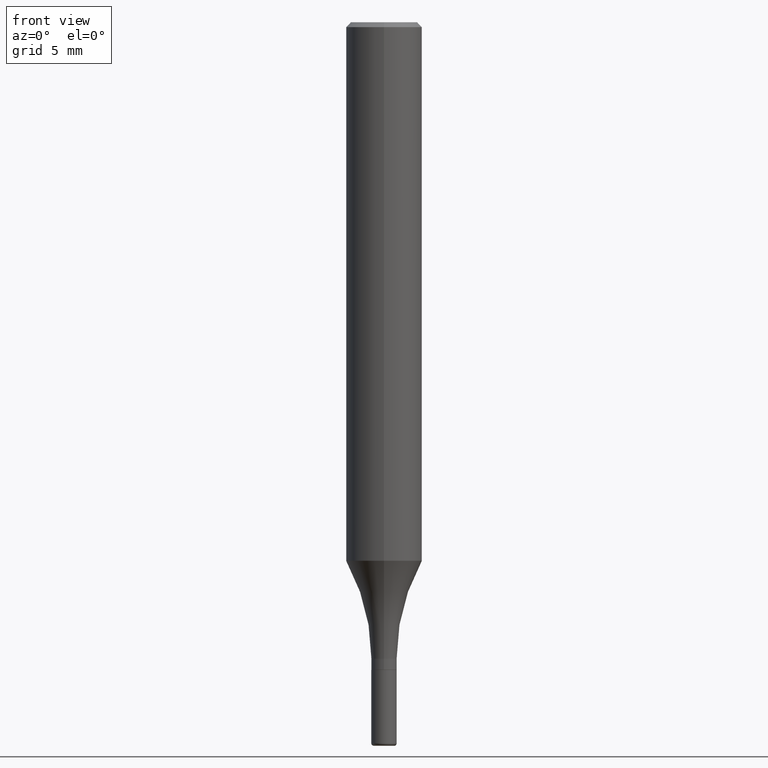
[diagram: clean part render]
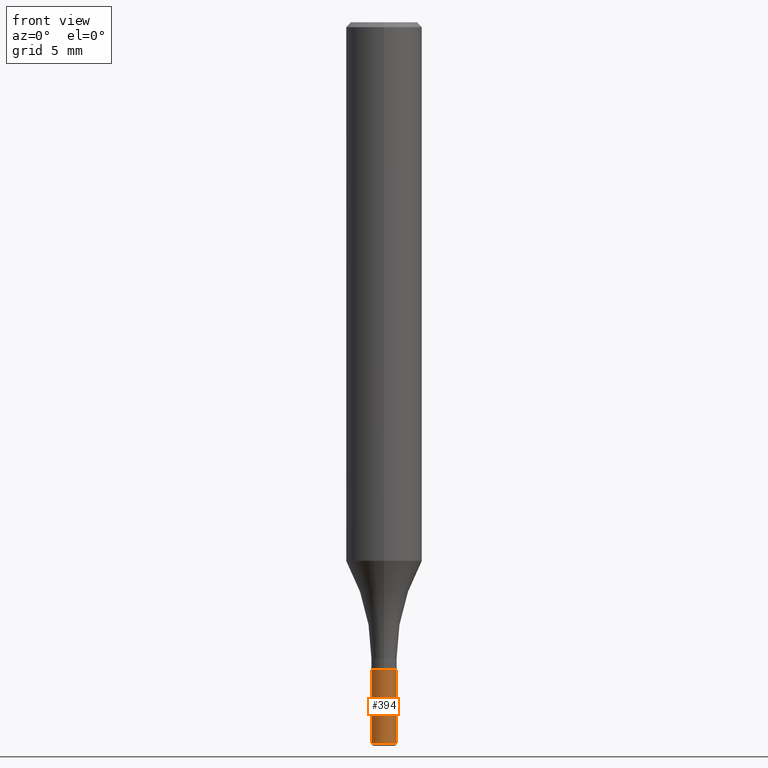
[diagram: same view with one face highlighted and labeled with its STEP entity id]
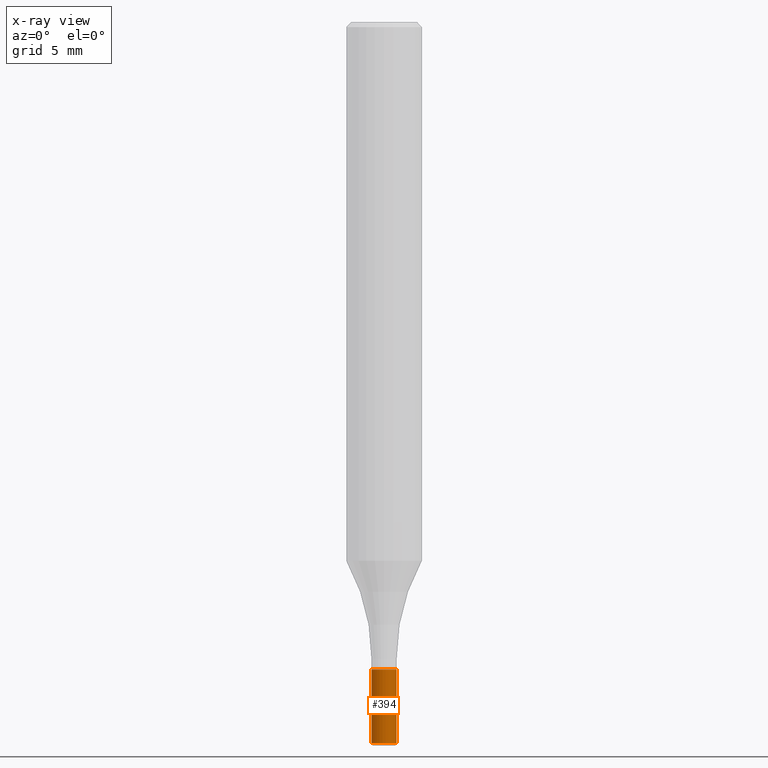
[diagram: x-ray of the same camera — body ghosted, the highlighted face saturated]
A machine part, front view. The second image highlights one B-rep face of the part: STEP entity #394.
The next image is the same camera in x-ray: the body ghosted, the highlighted face saturated — about 0% of this face is hidden behind the body in this view.
In plain terms, the highlighted cylindrical surface (edge-blend (fillet) strip) has radius 0.9995 mm, axis along (-0, 0, 1).
Its self-contained STEP definition (entity closure, byte-faithful):
#10 = DIRECTION ( 'NONE',  ( 1.000000000000000000, -6.982962677686269077E-15, 0.000000000000000000 ) ) ;
#15 = LINE ( 'NONE', #173, #375 ) ;
#21 = FACE_OUTER_BOUND ( 'NONE', #511, .T. ) ;
#25 = EDGE_CURVE ( 'NONE', #306, #213, #230, .T. ) ;
#26 = CIRCLE ( 'NONE', #68, 0.03935000000000000303 ) ;
#63 = DIRECTION ( 'NONE',  ( -2.445468806185136877E-29, 3.491481338843145188E-15, 1.000000000000000000 ) ) ;
#68 = AXIS2_PLACEMENT_3D ( 'NONE', #447, #246, #10 ) ;
#83 = CARTESIAN_POINT ( 'NONE',  ( -0.03935000000000015569, -7.129324834503553629E-15, -2.236099999999999977 ) ) ;
#87 = ORIENTED_EDGE ( 'NONE', *, *, #316, .F. ) ;
#95 = EDGE_CURVE ( 'NONE', #306, #282, #459, .T. ) ;
#128 = CARTESIAN_POINT ( 'NONE',  ( 0.000000000000000000, 0.000000000000000000, 0.000000000000000000 ) ) ;
#156 = CARTESIAN_POINT ( 'NONE',  ( 0.03935000000000015569, -8.082081003154113199E-15, -2.236099999999999977 ) ) ;
#167 = DIRECTION ( 'NONE',  ( 1.000000000000000000, -6.982962677686267499E-15, 0.000000000000000000 ) ) ;
#173 = CARTESIAN_POINT ( 'NONE',  ( 0.03935000000000007936, -2.747795813669551634E-16, 1.918775561275704577E-30 ) ) ;
#213 = VERTEX_POINT ( 'NONE', #156 ) ;
#221 = CARTESIAN_POINT ( 'NONE',  ( 0.03935000000000000303, -7.285324961630105839E-15, -2.007899999999999796 ) ) ;
#230 = CIRCLE ( 'NONE', #407, 0.03935000000000015569 ) ;
#246 = DIRECTION ( 'NONE',  ( -2.445468806185136597E-29, 3.491481338843145583E-15, 1.000000000000000000 ) ) ;
#282 = VERTEX_POINT ( 'NONE', #426 ) ;
#284 = DIRECTION ( 'NONE',  ( -2.445468806185136597E-29, 3.491481338843145583E-15, 1.000000000000000000 ) ) ;
#306 = VERTEX_POINT ( 'NONE', #83 ) ;
#316 = EDGE_CURVE ( 'NONE', #282, #479, #26, .T. ) ;
#317 = DIRECTION ( 'NONE',  ( -2.445468806185136597E-29, 3.491481338843145583E-15, 1.000000000000000000 ) ) ;
#324 = CYLINDRICAL_SURFACE ( 'NONE', #344, 0.03935000000000007936 ) ;
#328 = DIRECTION ( 'NONE',  ( -2.445468806185136877E-29, 3.491481338843145188E-15, 1.000000000000000000 ) ) ;
#330 = DIRECTION ( 'NONE',  ( 1.000000000000000000, -6.982962677686266711E-15, 4.876176775795935793E-29 ) ) ;
#334 = CARTESIAN_POINT ( 'NONE',  ( -0.03935000000000007936, 2.795985665215999870E-16, -1.935600958015309145E-30 ) ) ;
#342 = EDGE_CURVE ( 'NONE', #213, #479, #15, .T. ) ;
#344 = AXIS2_PLACEMENT_3D ( 'NONE', #128, #284, #330 ) ;
#375 = VECTOR ( 'NONE', #328, 39.37007874015748143 ) ;
#394 = ADVANCED_FACE ( 'NONE', ( #21 ), #324, .T. ) ;
#407 = AXIS2_PLACEMENT_3D ( 'NONE', #436, #317, #167 ) ;
#413 = VECTOR ( 'NONE', #63, 39.37007874015748143 ) ;
#426 = CARTESIAN_POINT ( 'NONE',  ( -0.03935000000000000303, -7.129324834503555207E-15, -2.007899999999999796 ) ) ;
#436 = CARTESIAN_POINT ( 'NONE',  ( 5.468312797510584412E-29, -7.807301421787156705E-15, -2.236099999999999977 ) ) ;
#447 = CARTESIAN_POINT ( 'NONE',  ( 4.910256815939135870E-29, -7.010545380263151710E-15, -2.007899999999999796 ) ) ;
#459 = LINE ( 'NONE', #334, #413 ) ;
#467 = ORIENTED_EDGE ( 'NONE', *, *, #25, .T. ) ;
#477 = ORIENTED_EDGE ( 'NONE', *, *, #342, .T. ) ;
#479 = VERTEX_POINT ( 'NONE', #221 ) ;
#503 = ORIENTED_EDGE ( 'NONE', *, *, #95, .F. ) ;
#511 = EDGE_LOOP ( 'NONE', ( #503, #467, #477, #87 ) ) ;